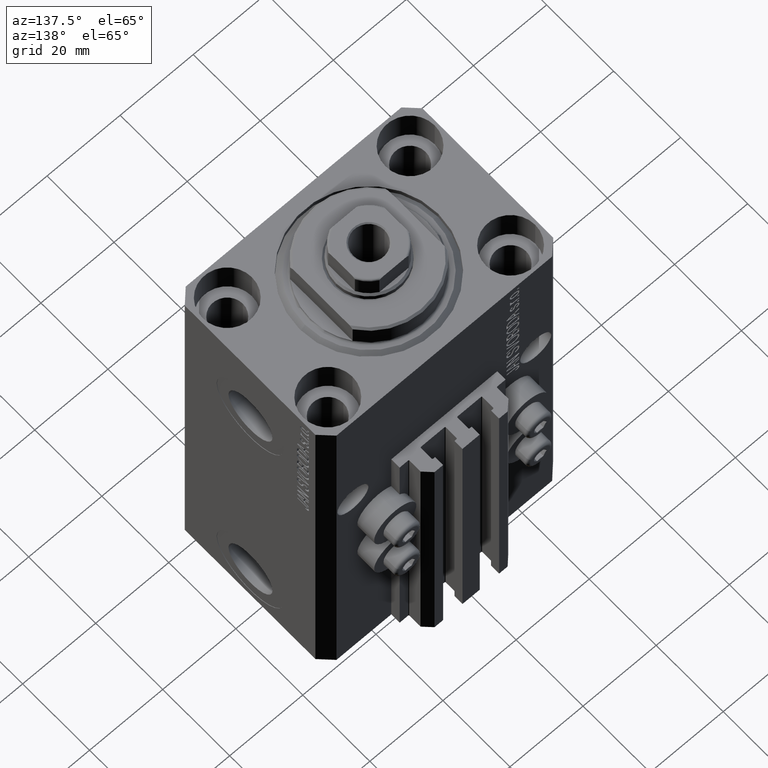
[diagram: clean part render]
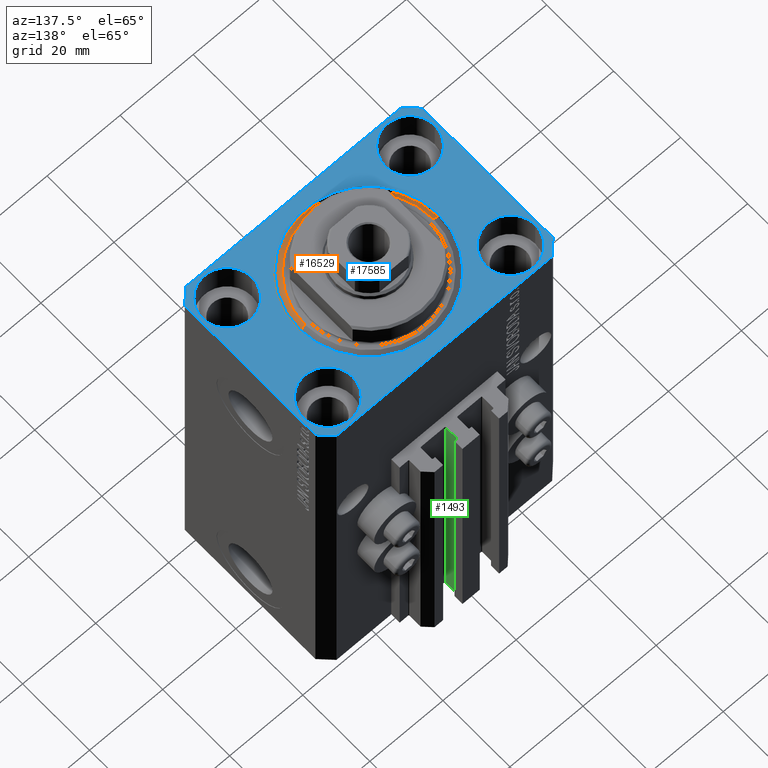
[diagram: same view with three faces highlighted in distinct colors, each labeled with its STEP entity id]
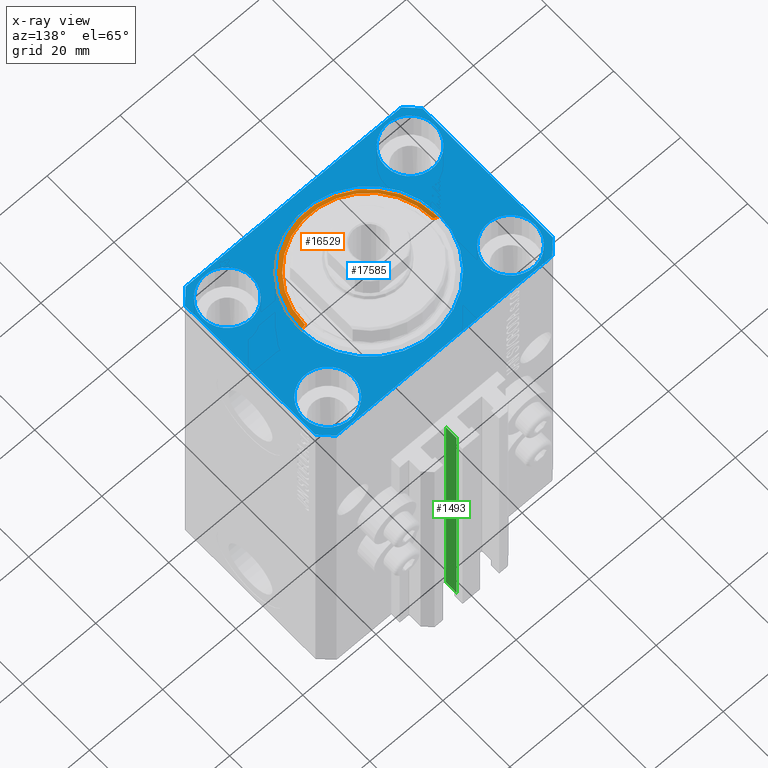
[diagram: x-ray of the same camera — body ghosted, the three highlighted faces saturated]
A machine part, auxiliary view with three faces highlighted in distinct colors.
The next image is the same camera in x-ray (body ghosted, the three faces saturated) — at least one of them is partly hidden behind the body in this view.
Their STEP definitions:

[orange] entity #16529 — the highlighted conical surface has half-angle 45 deg.
#719 = CARTESIAN_POINT ( 'NONE',  ( 0.000000000000000000, 0.000000000000000000, 1.500000000000001332 ) ) ;
#4296 = FACE_OUTER_BOUND ( 'NONE', #6809, .T. ) ;
#4702 = VERTEX_POINT ( 'NONE', #29815 ) ;
#5249 = CARTESIAN_POINT ( 'NONE',  ( -17.49999999999999645, 2.234980408443919215E-15, 0.000000000000000000 ) ) ;
#6481 = CARTESIAN_POINT ( 'NONE',  ( -19.00000000000000000, 2.326828918379970970E-15, 1.500000000000001332 ) ) ;
#6644 = CARTESIAN_POINT ( 'NONE',  ( 19.00000000000000000, 2.326828918379970970E-15, 1.500000000000001332 ) ) ;
#6809 = EDGE_LOOP ( 'NONE', ( #35433, #34774, #24054, #28315 ) ) ;
#7064 = CARTESIAN_POINT ( 'NONE',  ( 0.000000000000000000, 0.000000000000000000, 1.500000000000001332 ) ) ;
#10060 = CIRCLE ( 'NONE', #32909, 19.00000000000000000 ) ;
#10646 = DIRECTION ( 'NONE',  ( -0.000000000000000000, -0.000000000000000000, 1.000000000000000000 ) ) ;
#11704 = DIRECTION ( 'NONE',  ( 1.000000000000000000, 0.000000000000000000, 0.000000000000000000 ) ) ;
#12045 = CIRCLE ( 'NONE', #44051, 17.49999999999999645 ) ;
#12943 = DIRECTION ( 'NONE',  ( -0.7071067811865483499, 8.659560562354942719E-17, 0.7071067811865467956 ) ) ;
#13170 = CONICAL_SURFACE ( 'NONE', #27669, 19.00000000000000000, 0.7853981633974492782 ) ;
#15289 = DIRECTION ( 'NONE',  ( -0.000000000000000000, -0.000000000000000000, 1.000000000000000000 ) ) ;
#16529 = ADVANCED_FACE ( 'NONE', ( #4296 ), #13170, .T. ) ;
#17216 = EDGE_CURVE ( 'NONE', #36062, #4702, #39174, .T. ) ;
#21516 = CARTESIAN_POINT ( 'NONE',  ( 17.49999999999999645, 0.000000000000000000, 0.000000000000000000 ) ) ;
#24054 = ORIENTED_EDGE ( 'NONE', *, *, #24632, .T. ) ;
#24632 = EDGE_CURVE ( 'NONE', #33926, #36639, #28264, .T. ) ;
#25682 = DIRECTION ( 'NONE',  ( 1.000000000000000000, 0.000000000000000000, 0.000000000000000000 ) ) ;
#27669 = AXIS2_PLACEMENT_3D ( 'NONE', #719, #15289, #11704 ) ;
#28264 = LINE ( 'NONE', #47086, #34749 ) ;
#28315 = ORIENTED_EDGE ( 'NONE', *, *, #46818, .F. ) ;
#29432 = EDGE_CURVE ( 'NONE', #33926, #36062, #12045, .T. ) ;
#29815 = CARTESIAN_POINT ( 'NONE',  ( -19.00000000000000000, 0.000000000000000000, 1.500000000000001332 ) ) ;
#30991 = CARTESIAN_POINT ( 'NONE',  ( 0.000000000000000000, 0.000000000000000000, 0.000000000000000000 ) ) ;
#32909 = AXIS2_PLACEMENT_3D ( 'NONE', #7064, #10646, #25682 ) ;
#33926 = VERTEX_POINT ( 'NONE', #21516 ) ;
#34749 = VECTOR ( 'NONE', #43496, 1000.000000000000000 ) ;
#34774 = ORIENTED_EDGE ( 'NONE', *, *, #29432, .F. ) ;
#35433 = ORIENTED_EDGE ( 'NONE', *, *, #17216, .F. ) ;
#36062 = VERTEX_POINT ( 'NONE', #5249 ) ;
#36639 = VERTEX_POINT ( 'NONE', #6644 ) ;
#39174 = LINE ( 'NONE', #6481, #40616 ) ;
#40616 = VECTOR ( 'NONE', #12943, 1000.000000000000000 ) ;
#42648 = DIRECTION ( 'NONE',  ( 1.000000000000000000, 0.000000000000000000, 0.000000000000000000 ) ) ;
#43496 = DIRECTION ( 'NONE',  ( 0.7071067811865483499, 0.000000000000000000, 0.7071067811865467956 ) ) ;
#44051 = AXIS2_PLACEMENT_3D ( 'NONE', #30991, #46468, #42648 ) ;
#46468 = DIRECTION ( 'NONE',  ( -0.000000000000000000, -0.000000000000000000, -1.000000000000000000 ) ) ;
#46818 = EDGE_CURVE ( 'NONE', #4702, #36639, #10060, .T. ) ;
#47086 = CARTESIAN_POINT ( 'NONE',  ( 19.00000000000000000, 0.000000000000000000, 1.500000000000001332 ) ) ;

[blue] entity #17585 — the highlighted planar face has unit normal (0, 0, 1).
#19 = DIRECTION ( 'NONE',  ( 0.000000000000000000, 0.000000000000000000, 1.000000000000000000 ) ) ;
#126 = ORIENTED_EDGE ( 'NONE', *, *, #42274, .T. ) ;
#194 = FACE_BOUND ( 'NONE', #40817, .T. ) ;
#412 = ORIENTED_EDGE ( 'NONE', *, *, #5841, .F. ) ;
#633 = CARTESIAN_POINT ( 'NONE',  ( 24.99999999999999645, 15.00000000000000888, 0.000000000000000000 ) ) ;
#1390 = CARTESIAN_POINT ( 'NONE',  ( -32.49999999999650413, 19.49999999999949907, 0.000000000000000000 ) ) ;
#1432 = VERTEX_POINT ( 'NONE', #8495 ) ;
#2094 = CIRCLE ( 'NONE', #28777, 6.750000000022533087 ) ;
#2123 = DIRECTION ( 'NONE',  ( 0.000000000000000000, 0.000000000000000000, 1.000000000000000000 ) ) ;
#2516 = CARTESIAN_POINT ( 'NONE',  ( 31.74999999997746869, -15.00000000000000000, 0.000000000000000000 ) ) ;
#3064 = FACE_OUTER_BOUND ( 'NONE', #15061, .T. ) ;
#3349 = VECTOR ( 'NONE', #19545, 1000.000000000000000 ) ;
#3822 = EDGE_CURVE ( 'NONE', #13905, #29821, #18840, .T. ) ;
#4402 = VECTOR ( 'NONE', #25576, 1000.000000000000000 ) ;
#4451 = CARTESIAN_POINT ( 'NONE',  ( 0.000000000000000000, 0.000000000000000000, 0.000000000000000000 ) ) ;
#5182 = VERTEX_POINT ( 'NONE', #33334 ) ;
#5187 = EDGE_CURVE ( 'NONE', #7917, #19839, #21336, .T. ) ;
#5841 = EDGE_CURVE ( 'NONE', #5985, #17682, #45707, .T. ) ;
#5985 = VERTEX_POINT ( 'NONE', #39902 ) ;
#6354 = CARTESIAN_POINT ( 'NONE',  ( 18.25000000004154543, 15.00000000000000888, 0.000000000000000000 ) ) ;
#6603 = CARTESIAN_POINT ( 'NONE',  ( 18.25000000002253842, -15.00000000000000000, 0.000000000000000000 ) ) ;
#6626 = ORIENTED_EDGE ( 'NONE', *, *, #26654, .F. ) ;
#6651 = FACE_BOUND ( 'NONE', #37839, .T. ) ;
#6690 = CIRCLE ( 'NONE', #43259, 6.749999999958452790 ) ;
#6811 = EDGE_CURVE ( 'NONE', #40542, #47225, #10686, .T. ) ;
#7085 = ORIENTED_EDGE ( 'NONE', *, *, #19730, .T. ) ;
#7094 = ORIENTED_EDGE ( 'NONE', *, *, #6811, .F. ) ;
#7354 = FACE_BOUND ( 'NONE', #13765, .T. ) ;
#7608 = DIRECTION ( 'NONE',  ( -1.000000000000000000, -2.352167425053553784E-16, 0.000000000000000000 ) ) ;
#7658 = DIRECTION ( 'NONE',  ( 1.000000000000000000, 0.000000000000000000, 0.000000000000000000 ) ) ;
#7744 = VECTOR ( 'NONE', #17997, 1000.000000000000000 ) ;
#7917 = VERTEX_POINT ( 'NONE', #6354 ) ;
#8495 = CARTESIAN_POINT ( 'NONE',  ( -32.49999999999650413, 19.49999999999949907, 0.000000000000000000 ) ) ;
#8710 = VERTEX_POINT ( 'NONE', #6603 ) ;
#8785 = CARTESIAN_POINT ( 'NONE',  ( 19.00000000000000000, 0.000000000000000000, 0.000000000000000000 ) ) ;
#8811 = EDGE_LOOP ( 'NONE', ( #6626, #412 ) ) ;
#9040 = CARTESIAN_POINT ( 'NONE',  ( -29.49999999999650413, 22.49999999999949907, 0.000000000000000000 ) ) ;
#9922 = DIRECTION ( 'NONE',  ( 1.000000000000000000, 0.000000000000000000, 0.000000000000000000 ) ) ;
#10368 = CARTESIAN_POINT ( 'NONE',  ( -29.49999999999650413, -22.49999999999949907, 0.000000000000000000 ) ) ;
#10686 = CIRCLE ( 'NONE', #28981, 6.750000000022533087 ) ;
#11023 = CARTESIAN_POINT ( 'NONE',  ( -31.75000000002253842, 15.00000000000000000, 0.000000000000000000 ) ) ;
#11154 = DIRECTION ( 'NONE',  ( 1.000000000000000000, 0.000000000000000000, 0.000000000000000000 ) ) ;
#11492 = AXIS2_PLACEMENT_3D ( 'NONE', #38128, #34799, #31218 ) ;
#12086 = LINE ( 'NONE', #34039, #18941 ) ;
#13024 = CARTESIAN_POINT ( 'NONE',  ( -29.49999999999650413, 22.49999999999949907, 0.000000000000000000 ) ) ;
#13650 = CARTESIAN_POINT ( 'NONE',  ( -25.00000000000000355, -15.00000000000000000, 0.000000000000000000 ) ) ;
#13765 = EDGE_LOOP ( 'NONE', ( #24378, #39097 ) ) ;
#13905 = VERTEX_POINT ( 'NONE', #33805 ) ;
#14055 = DIRECTION ( 'NONE',  ( 0.000000000000000000, 0.000000000000000000, 1.000000000000000000 ) ) ;
#14324 = VERTEX_POINT ( 'NONE', #37784 ) ;
#14759 = FACE_BOUND ( 'NONE', #8811, .T. ) ;
#14815 = CARTESIAN_POINT ( 'NONE',  ( 29.49999999999650413, -22.49999999999949196, 0.000000000000000000 ) ) ;
#15061 = EDGE_LOOP ( 'NONE', ( #20282, #7085, #16882, #15088, #126, #19396, #34290, #19376 ) ) ;
#15088 = ORIENTED_EDGE ( 'NONE', *, *, #34207, .T. ) ;
#15202 = DIRECTION ( 'NONE',  ( 1.000000000000000000, 0.000000000000000000, 0.000000000000000000 ) ) ;
#15898 = EDGE_CURVE ( 'NONE', #8710, #26303, #29939, .T. ) ;
#16448 = CARTESIAN_POINT ( 'NONE',  ( 32.49999999999651124, -19.49999999999949196, 0.000000000000000000 ) ) ;
#16697 = DIRECTION ( 'NONE',  ( 1.000000000000000000, 0.000000000000000000, 0.000000000000000000 ) ) ;
#16773 = AXIS2_PLACEMENT_3D ( 'NONE', #4451, #19268, #33813 ) ;
#16882 = ORIENTED_EDGE ( 'NONE', *, *, #18673, .T. ) ;
#17171 = CIRCLE ( 'NONE', #35458, 6.749999999977465137 ) ;
#17585 = ADVANCED_FACE ( 'NONE', ( #40043, #7354, #194, #6651, #14759, #3064 ), #17641, .T. ) ;
#17641 = PLANE ( 'NONE',  #24668 ) ;
#17682 = VERTEX_POINT ( 'NONE', #8785 ) ;
#17997 = DIRECTION ( 'NONE',  ( 1.000000000000000000, 1.176083712526788232E-16, 0.000000000000000000 ) ) ;
#18240 = CARTESIAN_POINT ( 'NONE',  ( -31.75000000004154899, -15.00000000000000000, 0.000000000000000000 ) ) ;
#18673 = EDGE_CURVE ( 'NONE', #1432, #35528, #45300, .T. ) ;
#18840 = LINE ( 'NONE', #37664, #40309 ) ;
#18941 = VECTOR ( 'NONE', #41430, 1000.000000000000000 ) ;
#19268 = DIRECTION ( 'NONE',  ( 0.000000000000000000, 0.000000000000000000, 1.000000000000000000 ) ) ;
#19376 = ORIENTED_EDGE ( 'NONE', *, *, #35576, .T. ) ;
#19396 = ORIENTED_EDGE ( 'NONE', *, *, #32540, .T. ) ;
#19545 = DIRECTION ( 'NONE',  ( 0.000000000000000000, -1.000000000000000000, 0.000000000000000000 ) ) ;
#19730 = EDGE_CURVE ( 'NONE', #29821, #1432, #27191, .T. ) ;
#19743 = VERTEX_POINT ( 'NONE', #16448 ) ;
#19839 = VERTEX_POINT ( 'NONE', #38847 ) ;
#20062 = CARTESIAN_POINT ( 'NONE',  ( -32.49999999999650413, -19.49999999999949907, 0.000000000000000000 ) ) ;
#20282 = ORIENTED_EDGE ( 'NONE', *, *, #3822, .T. ) ;
#20617 = ORIENTED_EDGE ( 'NONE', *, *, #39843, .F. ) ;
#21336 = CIRCLE ( 'NONE', #45682, 6.749999999958452790 ) ;
#21544 = CARTESIAN_POINT ( 'NONE',  ( 24.99999999999999645, 15.00000000000000888, 0.000000000000000000 ) ) ;
#22232 = EDGE_CURVE ( 'NONE', #26303, #8710, #17171, .T. ) ;
#22533 = DIRECTION ( 'NONE',  ( -0.7071067811865352493, 0.7071067811865597852, 0.000000000000000000 ) ) ;
#22733 = DIRECTION ( 'NONE',  ( 0.000000000000000000, 0.000000000000000000, 1.000000000000000000 ) ) ;
#22937 = CIRCLE ( 'NONE', #11492, 6.750000000041541881 ) ;
#23031 = CIRCLE ( 'NONE', #42044, 6.750000000041541881 ) ;
#23633 = LINE ( 'NONE', #20062, #25810 ) ;
#24378 = ORIENTED_EDGE ( 'NONE', *, *, #22232, .F. ) ;
#24668 = AXIS2_PLACEMENT_3D ( 'NONE', #46745, #14055, #28617 ) ;
#25003 = ORIENTED_EDGE ( 'NONE', *, *, #32461, .F. ) ;
#25371 = ORIENTED_EDGE ( 'NONE', *, *, #5187, .F. ) ;
#25576 = DIRECTION ( 'NONE',  ( 0.7071067811865483499, 0.7071067811865466846, 0.000000000000000000 ) ) ;
#25810 = VECTOR ( 'NONE', #41506, 1000.000000000000114 ) ;
#26303 = VERTEX_POINT ( 'NONE', #2516 ) ;
#26447 = CIRCLE ( 'NONE', #30256, 19.00000000000000000 ) ;
#26654 = EDGE_CURVE ( 'NONE', #17682, #5985, #26447, .T. ) ;
#27022 = CARTESIAN_POINT ( 'NONE',  ( 0.000000000000000000, 0.000000000000000000, 0.000000000000000000 ) ) ;
#27191 = LINE ( 'NONE', #9040, #30828 ) ;
#27664 = DIRECTION ( 'NONE',  ( -0.7071067811865474617, -0.7071067811865474617, 0.000000000000000000 ) ) ;
#27987 = DIRECTION ( 'NONE',  ( 1.000000000000000000, 0.000000000000000000, 0.000000000000000000 ) ) ;
#28073 = CARTESIAN_POINT ( 'NONE',  ( -25.00000000000000355, 15.00000000000000000, 0.000000000000000000 ) ) ;
#28214 = CARTESIAN_POINT ( 'NONE',  ( -25.00000000000000355, 15.00000000000000000, 0.000000000000000000 ) ) ;
#28448 = CARTESIAN_POINT ( 'NONE',  ( -18.24999999997747224, 15.00000000000000000, 0.000000000000000000 ) ) ;
#28617 = DIRECTION ( 'NONE',  ( 1.000000000000000000, 0.000000000000000000, -0.000000000000000000 ) ) ;
#28777 = AXIS2_PLACEMENT_3D ( 'NONE', #28214, #31785, #31330 ) ;
#28981 = AXIS2_PLACEMENT_3D ( 'NONE', #28073, #45733, #9922 ) ;
#29627 = EDGE_CURVE ( 'NONE', #19743, #14324, #12086, .T. ) ;
#29821 = VERTEX_POINT ( 'NONE', #13024 ) ;
#29939 = CIRCLE ( 'NONE', #32949, 6.749999999977465137 ) ;
#30004 = DIRECTION ( 'NONE',  ( 0.000000000000000000, 0.000000000000000000, 1.000000000000000000 ) ) ;
#30256 = AXIS2_PLACEMENT_3D ( 'NONE', #27022, #22733, #37259 ) ;
#30418 = VECTOR ( 'NONE', #22533, 1000.000000000000000 ) ;
#30729 = VERTEX_POINT ( 'NONE', #46368 ) ;
#30828 = VECTOR ( 'NONE', #27664, 1000.000000000000114 ) ;
#31218 = DIRECTION ( 'NONE',  ( 1.000000000000000000, 0.000000000000000000, 0.000000000000000000 ) ) ;
#31330 = DIRECTION ( 'NONE',  ( 1.000000000000000000, 0.000000000000000000, 0.000000000000000000 ) ) ;
#31785 = DIRECTION ( 'NONE',  ( 0.000000000000000000, 0.000000000000000000, 1.000000000000000000 ) ) ;
#32461 = EDGE_CURVE ( 'NONE', #47225, #40542, #2094, .T. ) ;
#32540 = EDGE_CURVE ( 'NONE', #5182, #19743, #43205, .T. ) ;
#32949 = AXIS2_PLACEMENT_3D ( 'NONE', #44311, #40494, #11154 ) ;
#33225 = EDGE_CURVE ( 'NONE', #19839, #7917, #6690, .T. ) ;
#33334 = CARTESIAN_POINT ( 'NONE',  ( 29.49999999999650413, -22.49999999999949196, 0.000000000000000000 ) ) ;
#33805 = CARTESIAN_POINT ( 'NONE',  ( 29.49999999999707967, 22.49999999999951328, 0.000000000000000000 ) ) ;
#33813 = DIRECTION ( 'NONE',  ( 1.000000000000000000, 0.000000000000000000, 0.000000000000000000 ) ) ;
#34039 = CARTESIAN_POINT ( 'NONE',  ( 32.49999999999651124, -19.49999999999949196, 0.000000000000000000 ) ) ;
#34207 = EDGE_CURVE ( 'NONE', #35528, #42076, #23633, .T. ) ;
#34290 = ORIENTED_EDGE ( 'NONE', *, *, #29627, .T. ) ;
#34799 = DIRECTION ( 'NONE',  ( 0.000000000000000000, 0.000000000000000000, 1.000000000000000000 ) ) ;
#34829 = CARTESIAN_POINT ( 'NONE',  ( 25.00000000000000355, -15.00000000000000000, 0.000000000000000000 ) ) ;
#35375 = DIRECTION ( 'NONE',  ( 0.000000000000000000, 0.000000000000000000, 1.000000000000000000 ) ) ;
#35458 = AXIS2_PLACEMENT_3D ( 'NONE', #34829, #2123, #16697 ) ;
#35528 = VERTEX_POINT ( 'NONE', #38991 ) ;
#35576 = EDGE_CURVE ( 'NONE', #14324, #13905, #47082, .T. ) ;
#37049 = CARTESIAN_POINT ( 'NONE',  ( 32.49999999999702993, 19.49999999999945999, 0.000000000000000000 ) ) ;
#37259 = DIRECTION ( 'NONE',  ( 1.000000000000000000, 0.000000000000000000, 0.000000000000000000 ) ) ;
#37664 = CARTESIAN_POINT ( 'NONE',  ( 29.49999999999707967, 22.49999999999951328, 0.000000000000000000 ) ) ;
#37784 = CARTESIAN_POINT ( 'NONE',  ( 32.49999999999702993, 19.49999999999945999, 0.000000000000000000 ) ) ;
#37839 = EDGE_LOOP ( 'NONE', ( #25003, #7094 ) ) ;
#38128 = CARTESIAN_POINT ( 'NONE',  ( -25.00000000000000355, -15.00000000000000000, 0.000000000000000000 ) ) ;
#38160 = VERTEX_POINT ( 'NONE', #18240 ) ;
#38847 = CARTESIAN_POINT ( 'NONE',  ( 31.74999999995845101, 15.00000000000000888, 0.000000000000000000 ) ) ;
#38991 = CARTESIAN_POINT ( 'NONE',  ( -32.49999999999650413, -19.49999999999949907, 0.000000000000000000 ) ) ;
#39097 = ORIENTED_EDGE ( 'NONE', *, *, #15898, .F. ) ;
#39526 = CARTESIAN_POINT ( 'NONE',  ( -29.49999999999650413, -22.49999999999949907, 0.000000000000000000 ) ) ;
#39843 = EDGE_CURVE ( 'NONE', #38160, #30729, #22937, .T. ) ;
#39902 = CARTESIAN_POINT ( 'NONE',  ( -19.00000000000000000, 2.326828918379970970E-15, 0.000000000000000000 ) ) ;
#39918 = EDGE_LOOP ( 'NONE', ( #44908, #20617 ) ) ;
#40043 = FACE_BOUND ( 'NONE', #39918, .T. ) ;
#40165 = LINE ( 'NONE', #10368, #7744 ) ;
#40309 = VECTOR ( 'NONE', #7608, 1000.000000000000000 ) ;
#40494 = DIRECTION ( 'NONE',  ( 0.000000000000000000, 0.000000000000000000, 1.000000000000000000 ) ) ;
#40542 = VERTEX_POINT ( 'NONE', #11023 ) ;
#40817 = EDGE_LOOP ( 'NONE', ( #45492, #25371 ) ) ;
#41430 = DIRECTION ( 'NONE',  ( 1.334402673828349134E-14, 1.000000000000000000, 0.000000000000000000 ) ) ;
#41506 = DIRECTION ( 'NONE',  ( 0.7071067811865474617, -0.7071067811865474617, 0.000000000000000000 ) ) ;
#42044 = AXIS2_PLACEMENT_3D ( 'NONE', #13650, #35375, #27987 ) ;
#42076 = VERTEX_POINT ( 'NONE', #39526 ) ;
#42274 = EDGE_CURVE ( 'NONE', #42076, #5182, #40165, .T. ) ;
#43205 = LINE ( 'NONE', #14815, #4402 ) ;
#43259 = AXIS2_PLACEMENT_3D ( 'NONE', #21544, #19, #7658 ) ;
#44311 = CARTESIAN_POINT ( 'NONE',  ( 25.00000000000000355, -15.00000000000000000, 0.000000000000000000 ) ) ;
#44908 = ORIENTED_EDGE ( 'NONE', *, *, #46451, .F. ) ;
#45300 = LINE ( 'NONE', #1390, #3349 ) ;
#45492 = ORIENTED_EDGE ( 'NONE', *, *, #33225, .F. ) ;
#45682 = AXIS2_PLACEMENT_3D ( 'NONE', #633, #30004, #15202 ) ;
#45707 = CIRCLE ( 'NONE', #16773, 19.00000000000000000 ) ;
#45733 = DIRECTION ( 'NONE',  ( 0.000000000000000000, 0.000000000000000000, 1.000000000000000000 ) ) ;
#46368 = CARTESIAN_POINT ( 'NONE',  ( -18.24999999995846167, -15.00000000000000000, 0.000000000000000000 ) ) ;
#46451 = EDGE_CURVE ( 'NONE', #30729, #38160, #23031, .T. ) ;
#46745 = CARTESIAN_POINT ( 'NONE',  ( 0.000000000000000000, 0.000000000000000000, 0.000000000000000000 ) ) ;
#47082 = LINE ( 'NONE', #37049, #30418 ) ;
#47225 = VERTEX_POINT ( 'NONE', #28448 ) ;

[green] entity #1493 — the highlighted planar face has unit normal (1, 0, 0).
#855 = CARTESIAN_POINT ( 'NONE',  ( 1.600000000000000533, 24.69999999999949480, -107.0000000000000000 ) ) ;
#1472 = DIRECTION ( 'NONE',  ( 0.000000000000000000, 1.000000000000000000, 0.000000000000000000 ) ) ;
#1493 = ADVANCED_FACE ( 'NONE', ( #37599 ), #25698, .T. ) ;
#2002 = CARTESIAN_POINT ( 'NONE',  ( 1.600000000000000533, 24.69999999999949480, -107.0000000000000000 ) ) ;
#2872 = ORIENTED_EDGE ( 'NONE', *, *, #15821, .T. ) ;
#5058 = LINE ( 'NONE', #19628, #45125 ) ;
#7545 = DIRECTION ( 'NONE',  ( 0.000000000000000000, 0.000000000000000000, -1.000000000000000000 ) ) ;
#7790 = DIRECTION ( 'NONE',  ( 1.000000000000000000, 0.000000000000000000, 0.000000000000000000 ) ) ;
#8287 = DIRECTION ( 'NONE',  ( 0.000000000000000000, 0.000000000000000000, 1.000000000000000000 ) ) ;
#10740 = LINE ( 'NONE', #2002, #35383 ) ;
#11283 = EDGE_CURVE ( 'NONE', #20519, #24034, #5058, .T. ) ;
#12400 = CARTESIAN_POINT ( 'NONE',  ( 1.600000000000000533, 27.89999999999950120, -107.0000000000000000 ) ) ;
#13356 = VERTEX_POINT ( 'NONE', #32761 ) ;
#15821 = EDGE_CURVE ( 'NONE', #13356, #24034, #41969, .T. ) ;
#16572 = DIRECTION ( 'NONE',  ( 0.000000000000000000, 1.000000000000000000, 0.000000000000000000 ) ) ;
#16636 = AXIS2_PLACEMENT_3D ( 'NONE', #855, #7790, #7545 ) ;
#19628 = CARTESIAN_POINT ( 'NONE',  ( 1.600000000000000533, 24.69999999999949480, -33.00000000000000000 ) ) ;
#19815 = EDGE_LOOP ( 'NONE', ( #37447, #41638, #36274, #2872 ) ) ;
#20467 = EDGE_CURVE ( 'NONE', #35223, #13356, #10740, .T. ) ;
#20519 = VERTEX_POINT ( 'NONE', #42320 ) ;
#20592 = CARTESIAN_POINT ( 'NONE',  ( 1.600000000000000533, 27.89999999999950120, -33.00000000000000000 ) ) ;
#21532 = VECTOR ( 'NONE', #23869, 1000.000000000000000 ) ;
#22410 = EDGE_CURVE ( 'NONE', #35223, #20519, #36454, .T. ) ;
#23869 = DIRECTION ( 'NONE',  ( 0.000000000000000000, 0.000000000000000000, 1.000000000000000000 ) ) ;
#24034 = VERTEX_POINT ( 'NONE', #20592 ) ;
#25698 = PLANE ( 'NONE',  #16636 ) ;
#26443 = CARTESIAN_POINT ( 'NONE',  ( 1.599999999999999645, 24.69999999999949480, -107.0000000000000000 ) ) ;
#27845 = VECTOR ( 'NONE', #8287, 1000.000000000000000 ) ;
#32761 = CARTESIAN_POINT ( 'NONE',  ( 1.600000000000000533, 27.89999999999950120, -107.0000000000000000 ) ) ;
#35223 = VERTEX_POINT ( 'NONE', #39046 ) ;
#35383 = VECTOR ( 'NONE', #16572, 1000.000000000000000 ) ;
#36274 = ORIENTED_EDGE ( 'NONE', *, *, #20467, .T. ) ;
#36454 = LINE ( 'NONE', #26443, #27845 ) ;
#37447 = ORIENTED_EDGE ( 'NONE', *, *, #11283, .F. ) ;
#37599 = FACE_OUTER_BOUND ( 'NONE', #19815, .T. ) ;
#39046 = CARTESIAN_POINT ( 'NONE',  ( 1.599999999999999645, 24.69999999999949480, -107.0000000000000000 ) ) ;
#41638 = ORIENTED_EDGE ( 'NONE', *, *, #22410, .F. ) ;
#41969 = LINE ( 'NONE', #12400, #21532 ) ;
#42320 = CARTESIAN_POINT ( 'NONE',  ( 1.599999999999999645, 24.69999999999949480, -33.00000000000000000 ) ) ;
#45125 = VECTOR ( 'NONE', #1472, 1000.000000000000000 ) ;